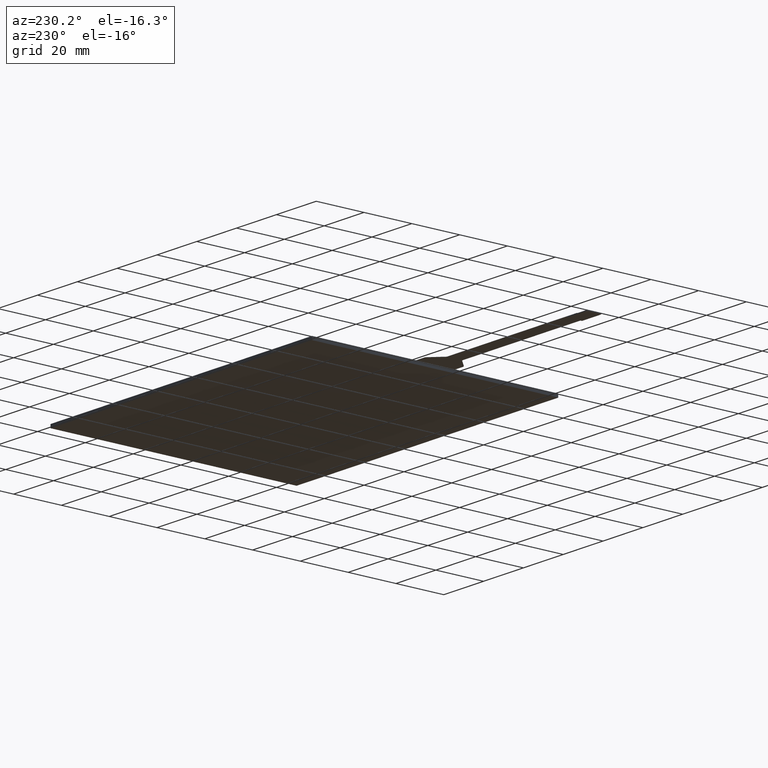
[diagram: clean part render]
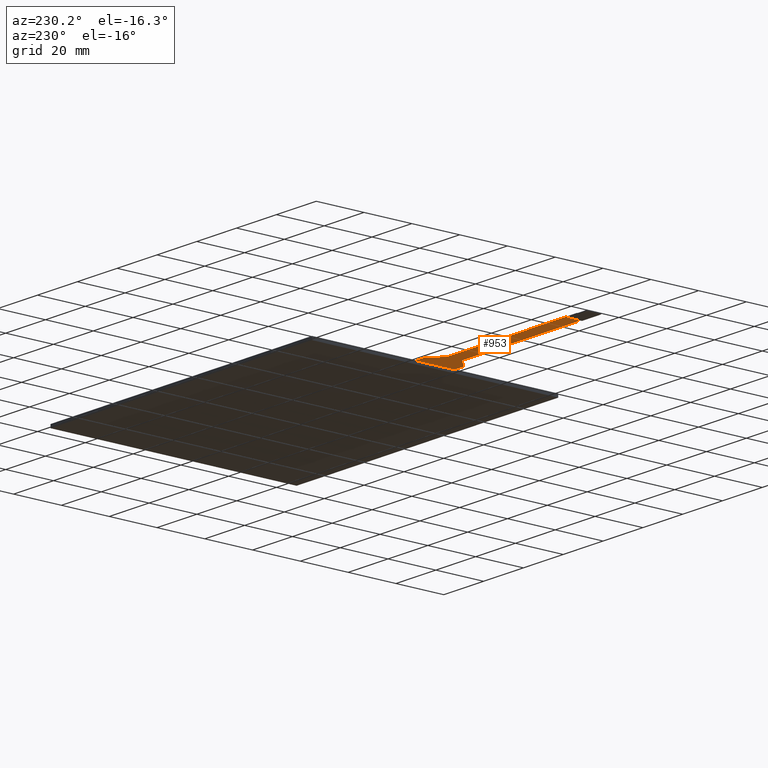
[diagram: same view with one face highlighted and labeled with its STEP entity id]
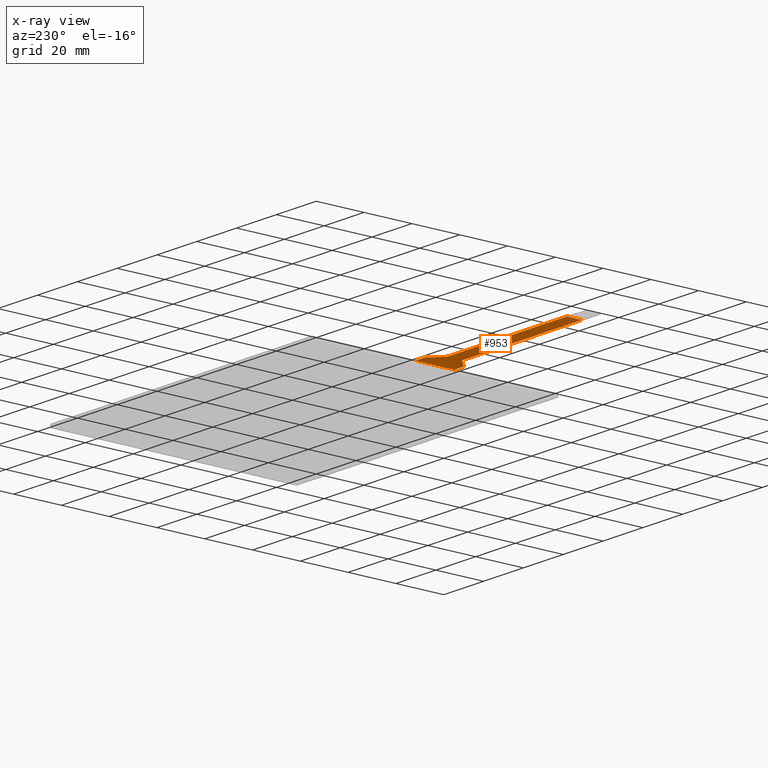
[diagram: x-ray of the same camera — body ghosted, the highlighted face saturated]
A machine part, auxiliary view. The second image highlights one B-rep face of the part: STEP entity #953.
The next image is the same camera in x-ray: the body ghosted, the highlighted face saturated — about 0% of this face is hidden behind the body in this view.
In plain terms, the highlighted planar face has unit normal (0, 0, 1).
Its self-contained STEP definition (entity closure, byte-faithful):
#23=PLANE('',#1032);
#72=FACE_OUTER_BOUND('',#123,.T.);
#123=EDGE_LOOP('',(#710,#711,#712,#713,#714,#715,#716,#717,#718,#719,#720,
#721));
#172=LINE('',#1347,#298);
#182=LINE('',#1376,#308);
#190=LINE('',#1394,#316);
#193=LINE('',#1402,#319);
#195=LINE('',#1405,#321);
#196=LINE('',#1407,#322);
#197=LINE('',#1408,#323);
#198=LINE('',#1409,#324);
#298=VECTOR('',#1092,10.);
#308=VECTOR('',#1116,10.);
#316=VECTOR('',#1130,10.);
#319=VECTOR('',#1139,10.);
#321=VECTOR('',#1143,10.);
#322=VECTOR('',#1144,10.);
#323=VECTOR('',#1145,10.);
#324=VECTOR('',#1146,10.);
#421=CIRCLE('',#1017,1.);
#425=CIRCLE('',#1024,1.);
#426=CIRCLE('',#1027,1.);
#427=CIRCLE('',#1030,1.);
#434=VERTEX_POINT('',#1337);
#435=VERTEX_POINT('',#1339);
#437=VERTEX_POINT('',#1345);
#447=VERTEX_POINT('',#1369);
#448=VERTEX_POINT('',#1370);
#449=VERTEX_POINT('',#1375);
#454=VERTEX_POINT('',#1387);
#455=VERTEX_POINT('',#1388);
#456=VERTEX_POINT('',#1393);
#457=VERTEX_POINT('',#1397);
#458=VERTEX_POINT('',#1401);
#459=VERTEX_POINT('',#1406);
#526=EDGE_CURVE('',#434,#435,#421,.T.);
#530=EDGE_CURVE('',#437,#434,#172,.T.);
#541=EDGE_CURVE('',#447,#448,#425,.T.);
#544=EDGE_CURVE('',#448,#449,#182,.T.);
#550=EDGE_CURVE('',#454,#455,#426,.T.);
#553=EDGE_CURVE('',#455,#456,#190,.T.);
#555=EDGE_CURVE('',#456,#457,#427,.T.);
#557=EDGE_CURVE('',#457,#458,#193,.T.);
#559=EDGE_CURVE('',#458,#437,#195,.T.);
#560=EDGE_CURVE('',#459,#454,#196,.T.);
#561=EDGE_CURVE('',#459,#449,#197,.T.);
#562=EDGE_CURVE('',#435,#447,#198,.T.);
#710=ORIENTED_EDGE('',*,*,#526,.F.);
#711=ORIENTED_EDGE('',*,*,#530,.F.);
#712=ORIENTED_EDGE('',*,*,#559,.F.);
#713=ORIENTED_EDGE('',*,*,#557,.F.);
#714=ORIENTED_EDGE('',*,*,#555,.F.);
#715=ORIENTED_EDGE('',*,*,#553,.F.);
#716=ORIENTED_EDGE('',*,*,#550,.F.);
#717=ORIENTED_EDGE('',*,*,#560,.F.);
#718=ORIENTED_EDGE('',*,*,#561,.T.);
#719=ORIENTED_EDGE('',*,*,#544,.F.);
#720=ORIENTED_EDGE('',*,*,#541,.F.);
#721=ORIENTED_EDGE('',*,*,#562,.F.);
#953=ADVANCED_FACE('',(#72),#23,.F.);
#1017=AXIS2_PLACEMENT_3D('',#1340,#1085,#1086);
#1024=AXIS2_PLACEMENT_3D('',#1371,#1110,#1111);
#1027=AXIS2_PLACEMENT_3D('',#1389,#1124,#1125);
#1030=AXIS2_PLACEMENT_3D('',#1398,#1134,#1135);
#1032=AXIS2_PLACEMENT_3D('',#1404,#1141,#1142);
#1085=DIRECTION('center_axis',(0.,0.,1.));
#1086=DIRECTION('ref_axis',(-0.38268343236509,0.923879532511287,0.));
#1092=DIRECTION('',(-1.,-2.32751158202339E-16,0.));
#1110=DIRECTION('center_axis',(0.,0.,-1.));
#1111=DIRECTION('ref_axis',(0.38268343236509,-0.923879532511287,0.));
#1116=DIRECTION('',(-1.,-1.18495413187543E-16,0.));
#1124=DIRECTION('center_axis',(0.,0.,-1.));
#1125=DIRECTION('ref_axis',(0.38268343236509,0.923879532511287,0.));
#1130=DIRECTION('',(0.707106781186546,-0.707106781186549,0.));
#1134=DIRECTION('center_axis',(0.,0.,1.));
#1135=DIRECTION('ref_axis',(-0.38268343236509,-0.923879532511287,0.));
#1139=DIRECTION('',(1.,0.,0.));
#1141=DIRECTION('center_axis',(0.,0.,1.));
#1142=DIRECTION('ref_axis',(1.,0.,0.));
#1143=DIRECTION('',(-1.72461829067985E-16,1.,0.));
#1144=DIRECTION('',(1.,5.29279512237694E-16,0.));
#1145=DIRECTION('',(0.,1.,0.));
#1146=DIRECTION('',(-0.707106781186547,-0.707106781186548,0.));
#1337=CARTESIAN_POINT('',(-72.0557864376269,8.10999999999998,-0.188));
#1339=CARTESIAN_POINT('',(-72.7628932188135,7.81710678118653,-0.188));
#1340=CARTESIAN_POINT('Origin',(-72.0557864376269,7.10999999999998,-0.188));
#1345=CARTESIAN_POINT('',(-67.7,8.10999999999998,-0.188));
#1347=CARTESIAN_POINT('',(-67.7,8.10999999999998,-0.188));
#1369=CARTESIAN_POINT('',(-77.1371067811866,3.44289321881343,-0.188));
#1370=CARTESIAN_POINT('',(-77.8442135623731,3.14999999999998,-0.188));
#1371=CARTESIAN_POINT('Origin',(-77.8442135623731,4.14999999999997,-0.188));
#1375=CARTESIAN_POINT('',(-137.7,3.14999999999997,-0.188));
#1376=CARTESIAN_POINT('',(-77.43,3.14999999999998,-0.188));
#1387=CARTESIAN_POINT('',(-77.8442135623731,-3.1,-0.188));
#1388=CARTESIAN_POINT('',(-77.1371067811866,-3.39289321881346,-0.188));
#1389=CARTESIAN_POINT('Origin',(-77.8442135623731,-4.1,-0.188));
#1393=CARTESIAN_POINT('',(-72.7628932188135,-7.76710678118657,-0.188));
#1394=CARTESIAN_POINT('',(-77.43,-3.1,-0.188));
#1397=CARTESIAN_POINT('',(-72.0557864376269,-8.06000000000002,-0.188));
#1398=CARTESIAN_POINT('Origin',(-72.0557864376269,-7.06000000000002,-0.188));
#1401=CARTESIAN_POINT('',(-67.7,-8.06000000000002,-0.188));
#1402=CARTESIAN_POINT('',(-72.47,-8.06000000000002,-0.188));
#1404=CARTESIAN_POINT('Origin',(-107.7,0.0249999999999806,-0.188));
#1405=CARTESIAN_POINT('',(-67.7,-25.7375,-0.188));
#1406=CARTESIAN_POINT('',(-137.7,-3.10000000000003,-0.188));
#1407=CARTESIAN_POINT('',(-147.7,-3.10000000000003,-0.188));
#1408=CARTESIAN_POINT('',(-137.7,1.58749999999997,-0.188));
#1409=CARTESIAN_POINT('',(-72.47,8.10999999999998,-0.188));